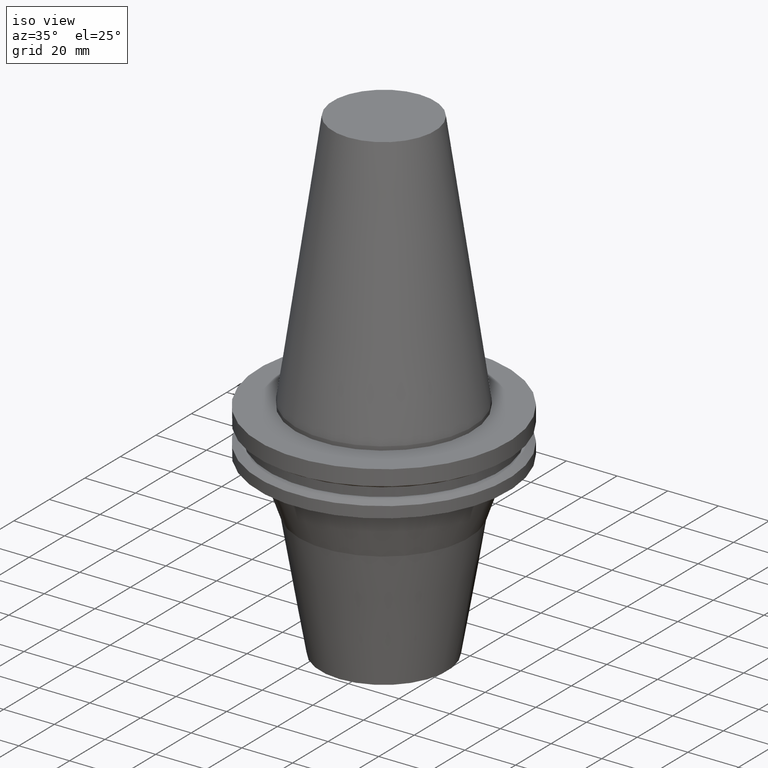
[diagram: clean part render]
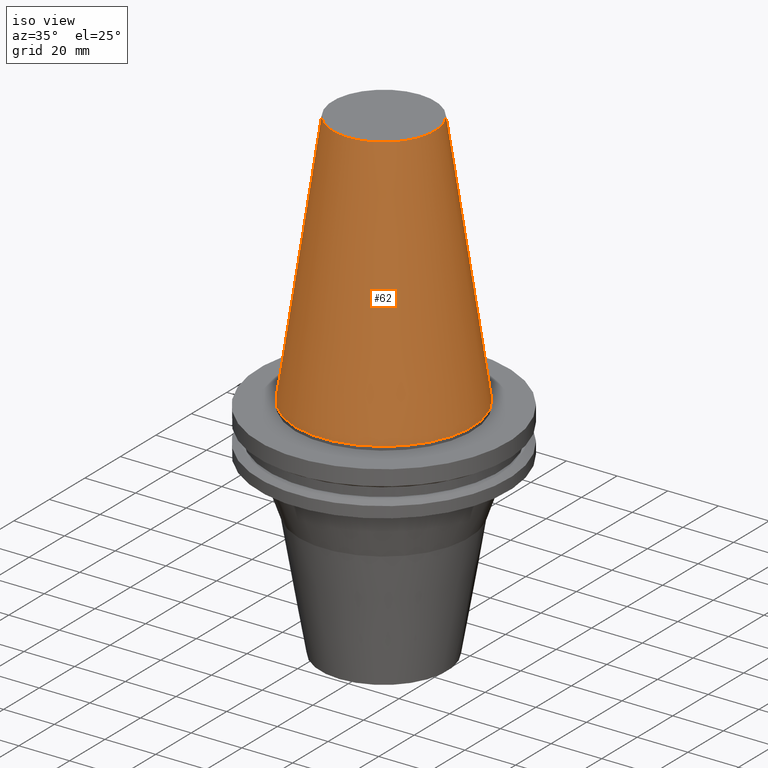
[diagram: tour spotlight — one face highlighted and labeled with its STEP entity id]
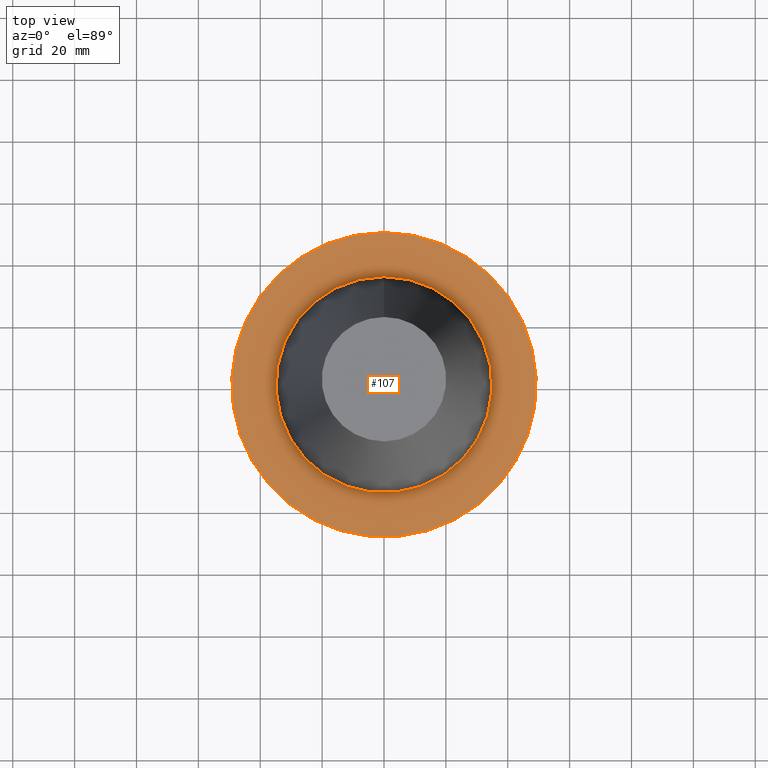
[diagram: tour spotlight — one face highlighted and labeled with its STEP entity id]
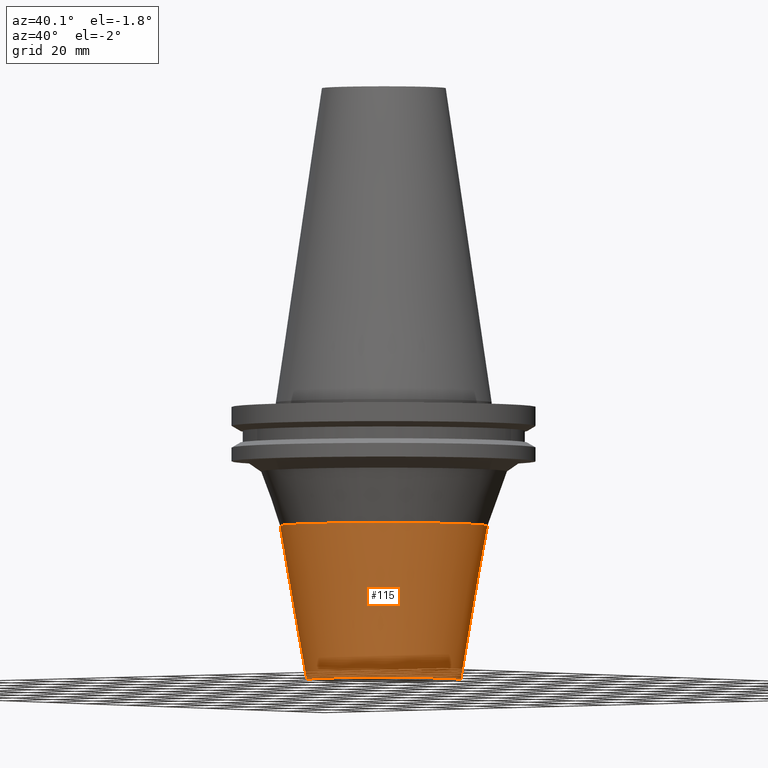
[diagram: tour spotlight — one face highlighted and labeled with its STEP entity id]
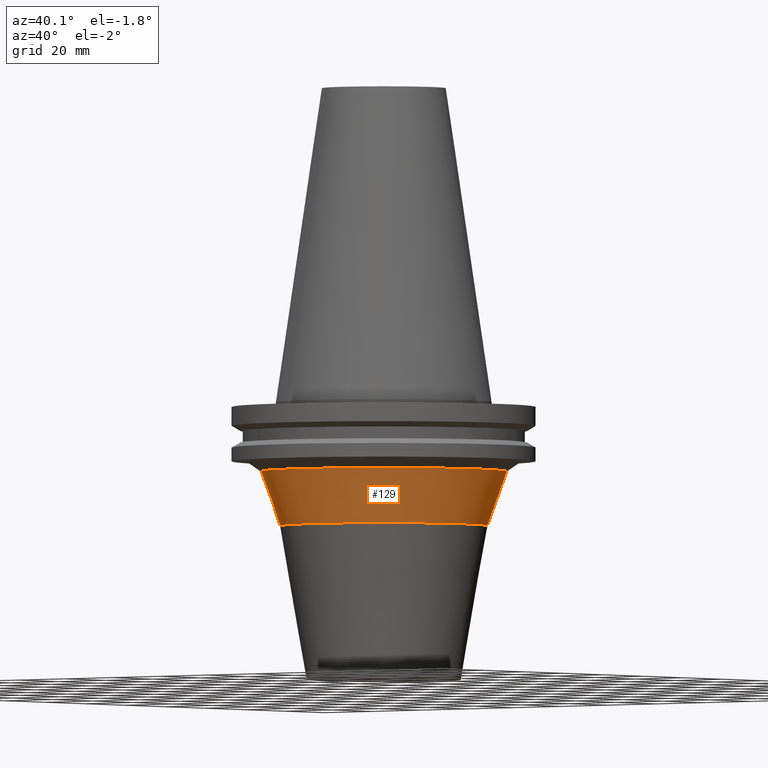
[diagram: tour spotlight — one face highlighted and labeled with its STEP entity id]
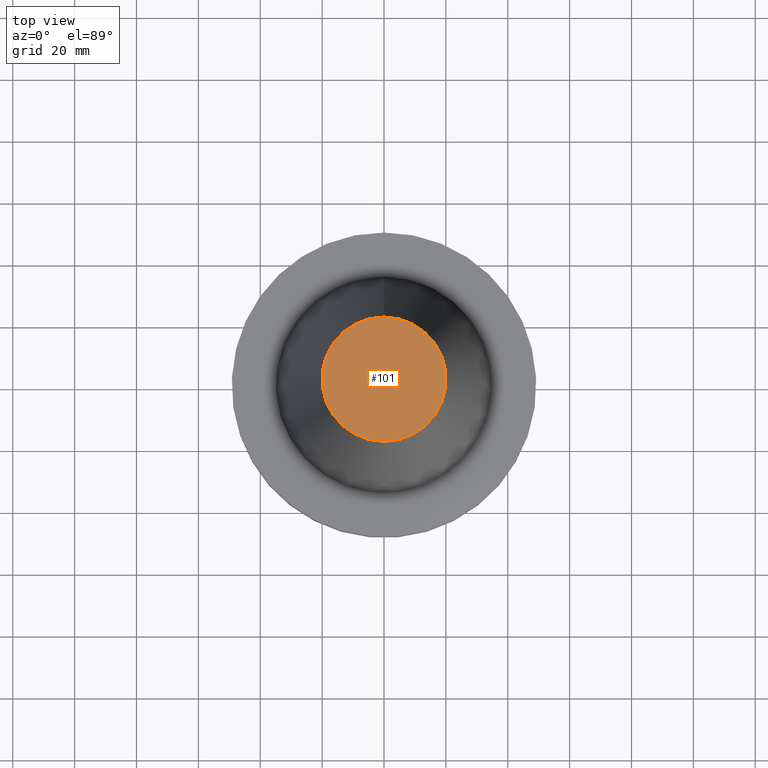
[diagram: tour spotlight — one face highlighted and labeled with its STEP entity id]
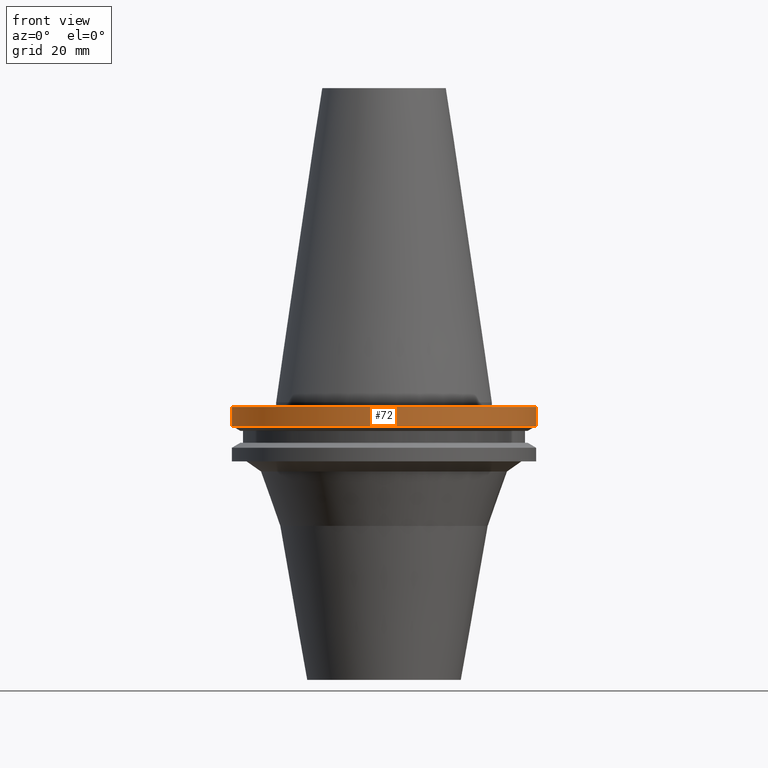
[diagram: tour spotlight — one face highlighted and labeled with its STEP entity id]
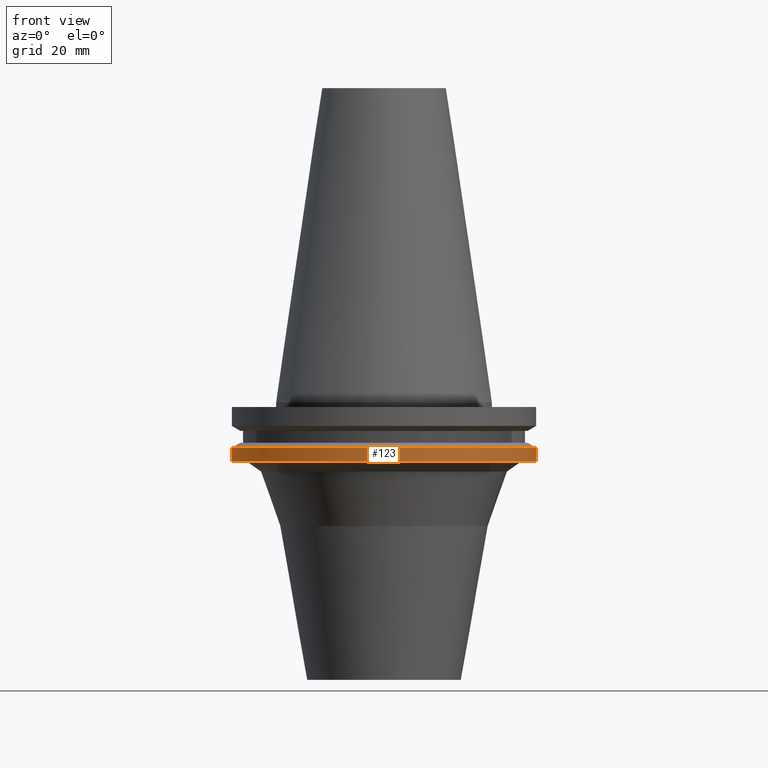
[diagram: tour spotlight — one face highlighted and labeled with its STEP entity id]
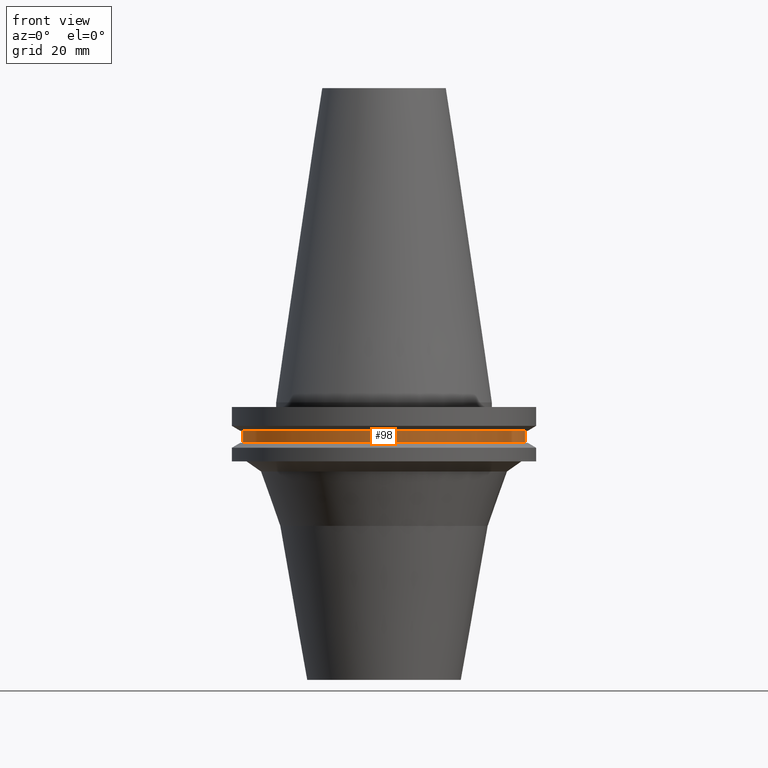
[diagram: tour spotlight — one face highlighted and labeled with its STEP entity id]
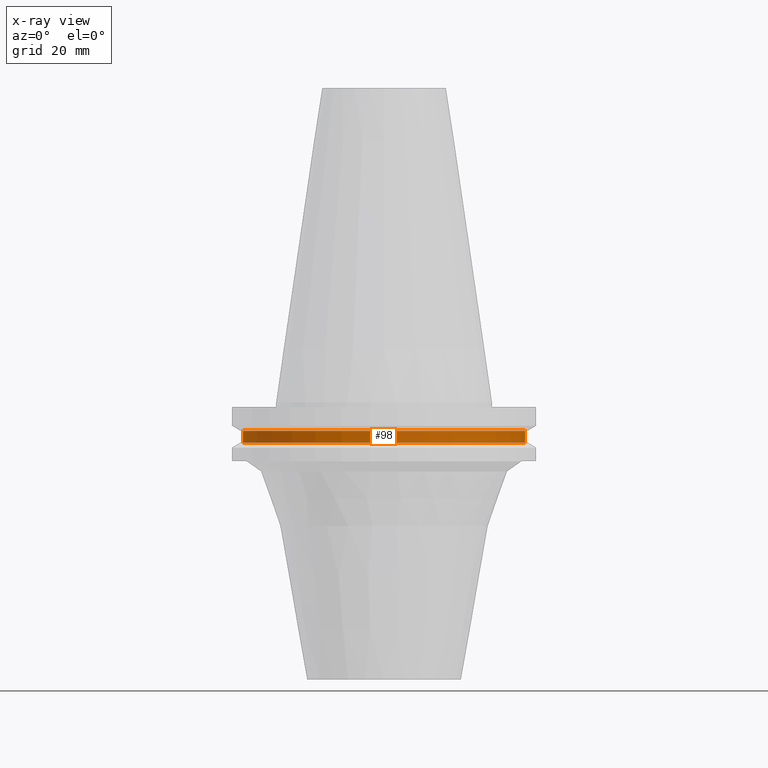
[diagram: x-ray of the same camera — body ghosted, this tour face saturated]
A machine part: a face-by-face anatomy tour. The part has 16 B-rep faces; the first image is the clean iso view, then the 8 largest visible faces are spotlighted one at a time (largest first), each with its STEP entity span.

Face 1 — iso view, entity #62. In plain terms, the highlighted conical surface has half-angle 8.297 deg.
Definition (entity closure, byte-faithful):
#62=ADVANCED_FACE('Unnamed[1]',(#162,#163),#164,.T.);
#90=EDGE_CURVE('Unnamed[1]',#207,#207,#208,.T.);
#131=EDGE_CURVE('Unnamed[1]',#270,#270,#271,.T.);
#162=FACE_BOUND('',#297,.T.);
#163=FACE_BOUND('',#298,.T.);
#164=CONICAL_SURFACE('',#299,27.5166666648608,0.144812498273746);
#207=VERTEX_POINT('',#354);
#208=CIRCLE('',#355,20.1083333297217);
#270=VERTEX_POINT('',#431);
#271=CIRCLE('',#432,34.925);
#297=EDGE_LOOP('',(#452));
#298=EDGE_LOOP('',(#453));
#299=AXIS2_PLACEMENT_3D('',#454,#455,#456);
#354=CARTESIAN_POINT('',(-6.22120573966855E-015,20.1083333297217,101.6));
#355=AXIS2_PLACEMENT_3D('',#502,#503,#504);
#431=CARTESIAN_POINT('',(-4.30483861169435E-031,34.925,4.27707894602213E-015));
#432=AXIS2_PLACEMENT_3D('',#573,#574,#575);
#452=ORIENTED_EDGE('',*,*,#131,.F.);
#453=ORIENTED_EDGE('',*,*,#90,.T.);
#454=CARTESIAN_POINT('',(-3.11060286983428E-015,-1.99652907127746E-015,50.8));
#455=DIRECTION('',(6.12323399573677E-017,-1.22232681699314E-016,-1.0));
#456=DIRECTION('',(2.65744038894731E-033,1.0,-1.22232681699314E-016));
#502=CARTESIAN_POINT('',(-6.22120573966855E-015,4.21289115904882E-015,101.6));
#503=DIRECTION('',(6.12323399573677E-017,-1.22232681699369E-016,-1.0));
#504=DIRECTION('',(2.65744038894814E-033,1.0,-1.22232681699369E-016));
#573=CARTESIAN_POINT('',(-8.7016388700601E-031,-8.20594930160374E-015,1.4210854715202E-014));
#574=DIRECTION('',(6.12323399573676E-017,-1.22232681699329E-016,-1.0));
#575=DIRECTION('',(2.65744038893913E-033,1.0,-1.22232681699329E-016));

Face 2 — top view, entity #107. In plain terms, the highlighted planar face has unit normal (-0, -0, 1).
Definition (entity closure, byte-faithful):
#69=EDGE_CURVE('Unnamed[1]',#174,#174,#175,.T.);
#107=ADVANCED_FACE('Unnamed[1]',(#233,#234),#235,.T.);
#112=EDGE_CURVE('Unnamed[1]',#241,#241,#242,.T.);
#174=VERTEX_POINT('',#312);
#175=CIRCLE('',#313,34.925);
#233=FACE_OUTER_BOUND('',#386,.T.);
#234=FACE_BOUND('',#387,.T.);
#235=PLANE('',#388);
#241=VERTEX_POINT('',#396);
#242=CIRCLE('',#397,49.2125);
#312=CARTESIAN_POINT('',(9.18485099360511E-017,34.925,-1.5));
#313=AXIS2_PLACEMENT_3D('',#466,#467,#468);
#386=EDGE_LOOP('',(#532));
#387=EDGE_LOOP('',(#533));
#388=AXIS2_PLACEMENT_3D('',#534,#535,#536);
#396=CARTESIAN_POINT('',(9.18485099360509E-017,49.2125,-1.49999999999999));
#397=AXIS2_PLACEMENT_3D('',#542,#543,#544);
#466=CARTESIAN_POINT('',(9.18485099360506E-017,-8.38929832415274E-015,-1.49999999999999));
#467=DIRECTION('',(6.12323399573676E-017,-1.22232681699329E-016,-1.0));
#468=DIRECTION('',(2.65744038893913E-033,1.0,-1.22232681699329E-016));
#532=ORIENTED_EDGE('',*,*,#112,.F.);
#533=ORIENTED_EDGE('',*,*,#69,.T.);
#534=CARTESIAN_POINT('',(9.1848509936051E-017,42.06875,-1.49999999999999));
#535=DIRECTION('',(-6.12323399573677E-017,-1.22464679914735E-016,1.0));
#536=DIRECTION('',(1.23259516440783E-032,-1.0,-1.22464679914735E-016));
#542=CARTESIAN_POINT('',(9.18485099360506E-017,-8.38929832415274E-015,-1.49999999999999));
#543=DIRECTION('',(6.12323399573677E-017,-1.22232681699326E-016,-1.0));
#544=DIRECTION('',(2.65744038894278E-033,1.0,-1.22232681699326E-016));

Face 3 — auxiliary view, entity #115. In plain terms, the highlighted conical surface has half-angle 9.769 deg.
Definition (entity closure, byte-faithful):
#85=EDGE_CURVE('Unnamed[1]',#199,#199,#200,.T.);
#95=EDGE_CURVE('Unnamed[1]',#215,#215,#216,.T.);
#115=ADVANCED_FACE('Unnamed[1]',(#245,#246),#247,.T.);
#199=VERTEX_POINT('',#344);
#200=CIRCLE('',#345,33.5687005288532);
#215=VERTEX_POINT('',#364);
#216=CIRCLE('',#365,24.9999999999992);
#245=FACE_BOUND('',#401,.T.);
#246=FACE_BOUND('',#402,.T.);
#247=CONICAL_SURFACE('',#403,29.2843502644262,0.170501990427445);
#344=CARTESIAN_POINT('',(2.44514318114198E-015,33.5687005288532,-39.9322185440631));
#345=AXIS2_PLACEMENT_3D('',#493,#494,#495);
#364=CARTESIAN_POINT('',(5.49254089417585E-015,24.9999999999992,-89.6999999999996));
#365=AXIS2_PLACEMENT_3D('',#511,#512,#513);
#401=EDGE_LOOP('',(#546));
#402=EDGE_LOOP('',(#547));
#403=AXIS2_PLACEMENT_3D('',#548,#549,#550);
#493=CARTESIAN_POINT('',(2.44514318114198E-015,-1.30869714604485E-014,-39.9322185440631));
#494=DIRECTION('',(6.12323399573676E-017,-1.22232681699308E-016,-1.0));
#495=DIRECTION('',(2.65744038894555E-033,1.0,-1.22232681699308E-016));
#511=CARTESIAN_POINT('',(5.49254089417585E-015,-1.91702208500342E-014,-89.6999999999996));
#512=DIRECTION('',(6.12323399573677E-017,-1.22232681699313E-016,-1.0));
#513=DIRECTION('',(2.6574403889421E-033,1.0,-1.22232681699313E-016));
#546=ORIENTED_EDGE('',*,*,#95,.F.);
#547=ORIENTED_EDGE('',*,*,#85,.T.);
#548=CARTESIAN_POINT('',(3.96884203765892E-015,-1.61285961552413E-014,-64.8161092720314));
#549=DIRECTION('',(-6.12323399573676E-017,1.2223268169931E-016,1.0));
#550=DIRECTION('',(2.65744038894102E-033,1.0,-1.2223268169931E-016));

Face 4 — auxiliary view, entity #129. In plain terms, the highlighted conical surface has half-angle 19.512 deg.
Definition (entity closure, byte-faithful):
#85=EDGE_CURVE('Unnamed[1]',#199,#199,#200,.T.);
#129=ADVANCED_FACE('Unnamed[1]',(#266,#267),#268,.T.);
#135=EDGE_CURVE('Unnamed[1]',#276,#276,#277,.T.);
#199=VERTEX_POINT('',#344);
#200=CIRCLE('',#345,33.5687005288532);
#266=FACE_BOUND('',#426,.T.);
#267=FACE_BOUND('',#427,.T.);
#268=CONICAL_SURFACE('',#428,36.6856375579859,0.340546633697126);
#276=VERTEX_POINT('',#439);
#277=CIRCLE('',#440,39.8025745871186);
#344=CARTESIAN_POINT('',(2.44514318114198E-015,33.5687005288532,-39.9322185440631));
#345=AXIS2_PLACEMENT_3D('',#493,#494,#495);
#426=EDGE_LOOP('',(#568));
#427=EDGE_LOOP('',(#569));
#428=AXIS2_PLACEMENT_3D('',#570,#571,#572);
#439=CARTESIAN_POINT('',(1.36792430753277E-015,39.8025745871186,-22.3398992833717));
#440=AXIS2_PLACEMENT_3D('',#579,#580,#581);
#493=CARTESIAN_POINT('',(2.44514318114198E-015,-1.30869714604485E-014,-39.9322185440631));
#494=DIRECTION('',(6.12323399573676E-017,-1.22232681699308E-016,-1.0));
#495=DIRECTION('',(2.65744038894555E-033,1.0,-1.22232681699308E-016));
#568=ORIENTED_EDGE('',*,*,#85,.F.);
#569=ORIENTED_EDGE('',*,*,#135,.T.);
#570=CARTESIAN_POINT('',(1.90653374433737E-015,-1.20117932801759E-014,-31.1360589137174));
#571=DIRECTION('',(-6.12323399573677E-017,1.22232681699342E-016,1.0));
#572=DIRECTION('',(2.65744038894737E-033,1.0,-1.22232681699342E-016));
#579=CARTESIAN_POINT('',(1.36792430753277E-015,-1.09366150999033E-014,-22.3398992833717));
#580=DIRECTION('',(6.12323399573677E-017,-1.22232681699371E-016,-1.0));
#581=DIRECTION('',(2.65744038894889E-033,1.0,-1.22232681699371E-016));

Face 5 — top view, entity #101. In plain terms, the highlighted planar face has unit normal (-0, -0, 1).
Definition (entity closure, byte-faithful):
#90=EDGE_CURVE('Unnamed[1]',#207,#207,#208,.T.);
#101=ADVANCED_FACE('Unnamed[1]',(#224),#225,.T.);
#207=VERTEX_POINT('',#354);
#208=CIRCLE('',#355,20.1083333297217);
#224=FACE_OUTER_BOUND('',#375,.T.);
#225=PLANE('',#376);
#354=CARTESIAN_POINT('',(-6.22120573966855E-015,20.1083333297217,101.6));
#355=AXIS2_PLACEMENT_3D('',#502,#503,#504);
#375=EDGE_LOOP('',(#521));
#376=AXIS2_PLACEMENT_3D('',#522,#523,#524);
#502=CARTESIAN_POINT('',(-6.22120573966855E-015,4.21289115904882E-015,101.6));
#503=DIRECTION('',(6.12323399573677E-017,-1.22232681699369E-016,-1.0));
#504=DIRECTION('',(2.65744038894814E-033,1.0,-1.22232681699369E-016));
#521=ORIENTED_EDGE('',*,*,#90,.F.);
#522=CARTESIAN_POINT('',(-6.22120573966855E-015,10.0541666648608,101.6));
#523=DIRECTION('',(-6.12323399573677E-017,-1.22464679914735E-016,1.0));
#524=DIRECTION('',(1.23259516440783E-032,-1.0,-1.22464679914735E-016));

Face 6 — front view, entity #72. In plain terms, the highlighted cylindrical surface (bore or boss wall) has radius 49.2125 mm, axis along (0, -0, -1).
Definition (entity closure, byte-faithful):
#72=ADVANCED_FACE('Unnamed[1]',(#178,#179),#180,.T.);
#77=EDGE_CURVE('Unnamed[1]',#187,#187,#188,.T.);
#112=EDGE_CURVE('Unnamed[1]',#241,#241,#242,.T.);
#178=FACE_BOUND('',#317,.T.);
#179=FACE_BOUND('',#318,.T.);
#180=CYLINDRICAL_SURFACE('',#319,49.2125);
#187=VERTEX_POINT('',#328);
#188=CIRCLE('',#329,49.2125);
#241=VERTEX_POINT('',#396);
#242=CIRCLE('',#397,49.2125);
#317=EDGE_LOOP('',(#470));
#318=EDGE_LOOP('',(#471));
#319=AXIS2_PLACEMENT_3D('',#472,#473,#474);
#328=CARTESIAN_POINT('',(4.64988177918915E-016,49.2125,-7.59383323));
#329=AXIS2_PLACEMENT_3D('',#481,#482,#483);
#396=CARTESIAN_POINT('',(9.18485099360509E-017,49.2125,-1.49999999999999));
#397=AXIS2_PLACEMENT_3D('',#542,#543,#544);
#470=ORIENTED_EDGE('',*,*,#77,.F.);
#471=ORIENTED_EDGE('',*,*,#112,.T.);
#472=CARTESIAN_POINT('',(2.78418343927483E-016,-8.76173111291846E-015,-4.54691661499999));
#473=DIRECTION('',(6.12323399573677E-017,-1.22232681699326E-016,-1.0));
#474=DIRECTION('',(2.65744038894278E-033,1.0,-1.22232681699326E-016));
#481=CARTESIAN_POINT('',(4.64988177918915E-016,-9.13416390168417E-015,-7.59383322999999));
#482=DIRECTION('',(6.12323399573677E-017,-1.22232681699326E-016,-1.0));
#483=DIRECTION('',(2.65744038894278E-033,1.0,-1.22232681699326E-016));
#542=CARTESIAN_POINT('',(9.18485099360506E-017,-8.38929832415274E-015,-1.49999999999999));
#543=DIRECTION('',(6.12323399573677E-017,-1.22232681699326E-016,-1.0));
#544=DIRECTION('',(2.65744038894278E-033,1.0,-1.22232681699326E-016));

Face 7 — front view, entity #123. In plain terms, the highlighted cylindrical surface (bore or boss wall) has radius 49.2125 mm, axis along (0, -0, -1).
Definition (entity closure, byte-faithful):
#83=EDGE_CURVE('Unnamed[1]',#196,#196,#197,.T.);
#117=EDGE_CURVE('Unnamed[1]',#249,#249,#250,.T.);
#123=ADVANCED_FACE('Unnamed[1]',(#256,#257),#258,.T.);
#196=VERTEX_POINT('',#340);
#197=CIRCLE('',#341,49.2125);
#249=VERTEX_POINT('',#406);
#250=CIRCLE('',#407,49.2125);
#256=FACE_BOUND('',#414,.T.);
#257=FACE_BOUND('',#415,.T.);
#258=CYLINDRICAL_SURFACE('',#416,49.2125);
#340=CARTESIAN_POINT('',(1.16647607618785E-015,49.2125,-19.05));
#341=AXIS2_PLACEMENT_3D('',#490,#491,#492);
#406=CARTESIAN_POINT('',(8.96819062732941E-016,49.2125,-14.64616677));
#407=AXIS2_PLACEMENT_3D('',#551,#552,#553);
#414=EDGE_LOOP('',(#556));
#415=EDGE_LOOP('',(#557));
#416=AXIS2_PLACEMENT_3D('',#558,#559,#560);
#490=CARTESIAN_POINT('',(1.16647607618785E-015,-1.05344818879761E-014,-19.05));
#491=DIRECTION('',(6.12323399573676E-017,-1.22232681699326E-016,-1.0));
#492=DIRECTION('',(2.65744038894278E-033,1.0,-1.22232681699326E-016));
#551=CARTESIAN_POINT('',(8.96819062732941E-016,-9.99618954251654E-015,-14.64616677));
#552=DIRECTION('',(6.12323399573676E-017,-1.22232681699326E-016,-1.0));
#553=DIRECTION('',(2.65744038894278E-033,1.0,-1.22232681699326E-016));
#556=ORIENTED_EDGE('',*,*,#83,.F.);
#557=ORIENTED_EDGE('',*,*,#117,.T.);
#558=CARTESIAN_POINT('',(1.0316475694604E-015,-1.02653357152463E-014,-16.848083385));
#559=DIRECTION('',(6.12323399573676E-017,-1.22232681699326E-016,-1.0));
#560=DIRECTION('',(2.65744038894278E-033,1.0,-1.22232681699326E-016));

Face 8 — front view, entity #98. An x-ray twin of the same camera follows (body ghosted, this face saturated) — the face is partly hidden behind the body. In plain terms, the highlighted cylindrical surface (bore or boss wall) has radius 45.645 mm, axis along (0, -0, -1).
Definition (entity closure, byte-faithful):
#56=EDGE_CURVE('Unnamed[1]',#153,#153,#154,.T.);
#67=EDGE_CURVE('Unnamed[1]',#171,#171,#172,.T.);
#98=ADVANCED_FACE('Unnamed[1]',(#219,#220),#221,.T.);
#153=VERTEX_POINT('',#286);
#154=CIRCLE('',#287,45.645);
#171=VERTEX_POINT('',#308);
#172=CIRCLE('',#309,45.645);
#219=FACE_BOUND('',#369,.T.);
#220=FACE_BOUND('',#370,.T.);
#221=CYLINDRICAL_SURFACE('',#371,45.645);
#286=CARTESIAN_POINT('',(7.98469713044073E-016,45.645,-13.04));
#287=AXIS2_PLACEMENT_3D('',#442,#443,#444);
#308=CARTESIAN_POINT('',(5.63337527607782E-016,45.645,-9.2));
#309=AXIS2_PLACEMENT_3D('',#463,#464,#465);
#369=EDGE_LOOP('',(#515));
#370=EDGE_LOOP('',(#516));
#371=AXIS2_PLACEMENT_3D('',#517,#518,#519);
#442=CARTESIAN_POINT('',(7.98469713044073E-016,-9.79986347096308E-015,-13.04));
#443=DIRECTION('',(6.12323399573677E-017,-1.22232681699306E-016,-1.0));
#444=DIRECTION('',(2.65744038894321E-033,1.0,-1.22232681699306E-016));
#463=CARTESIAN_POINT('',(5.63337527607782E-016,-9.33048997323763E-015,-9.19999999999999));
#464=DIRECTION('',(6.12323399573677E-017,-1.22232681699306E-016,-1.0));
#465=DIRECTION('',(2.65744038894321E-033,1.0,-1.22232681699306E-016));
#515=ORIENTED_EDGE('',*,*,#56,.F.);
#516=ORIENTED_EDGE('',*,*,#67,.T.);
#517=CARTESIAN_POINT('',(6.80903620325928E-016,-9.56517672210036E-015,-11.12));
#518=DIRECTION('',(6.12323399573677E-017,-1.22232681699306E-016,-1.0));
#519=DIRECTION('',(2.65744038894321E-033,1.0,-1.22232681699306E-016));